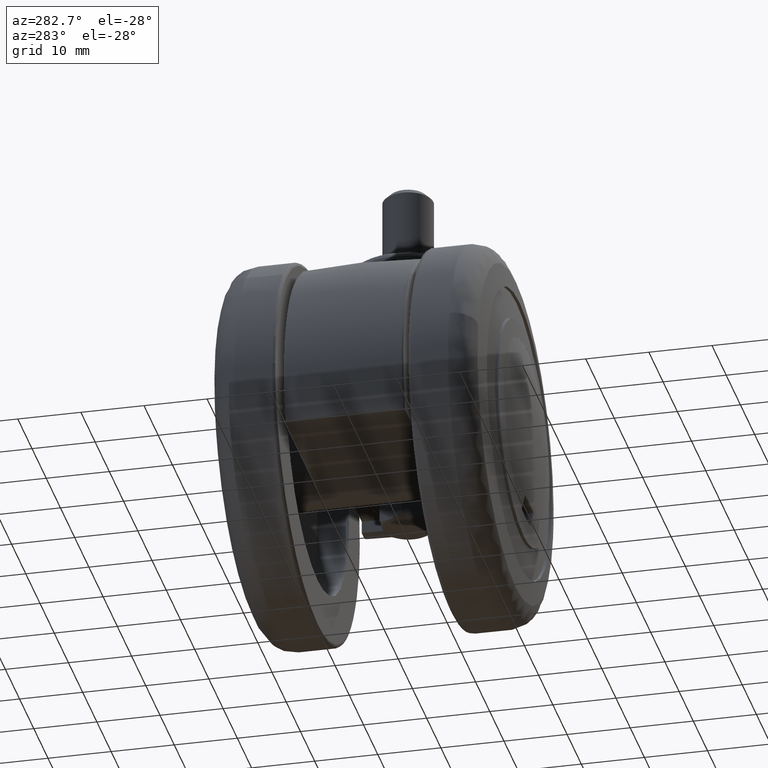
[diagram: clean part render]
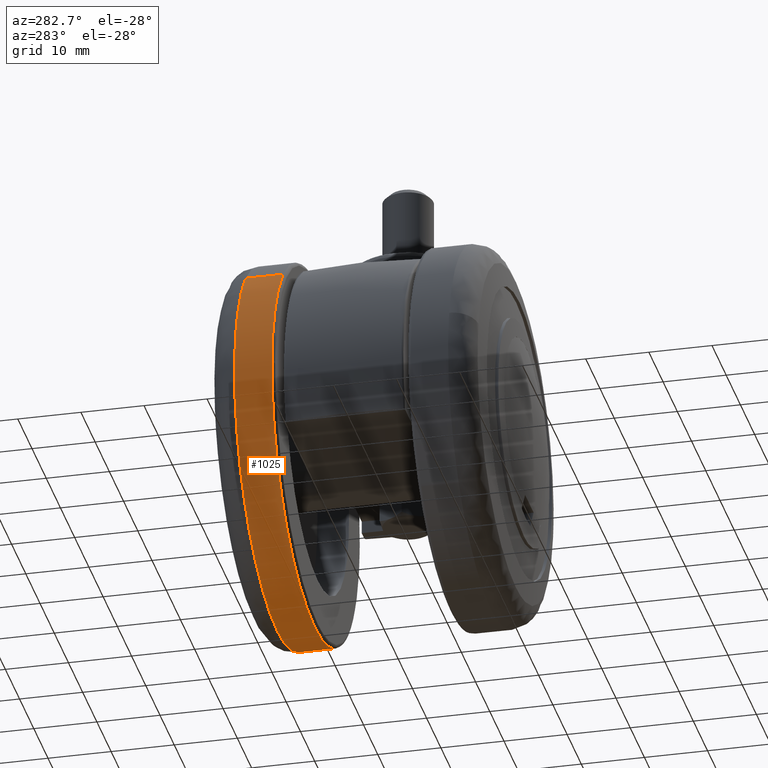
[diagram: same view with one face highlighted and labeled with its STEP entity id]
A machine part, auxiliary view. The second image highlights one B-rep face of the part: STEP entity #1025.
In plain terms, the highlighted face is a freeform B-spline surface patch.
Its self-contained STEP definition (entity closure, byte-faithful):
#804=CARTESIAN_POINT('',(19.630187965152860,16.918165000004919,-22.686024782953091));
#805=VERTEX_POINT('',#804);
#836=CARTESIAN_POINT('',(-22.118321371718419,16.918165000004819,20.267704845329199));
#837=VERTEX_POINT('',#836);
#851=CARTESIAN_POINT('',(-22.118321259217169,10.999999999976550,20.267704968094289));
#852=VERTEX_POINT('',#851);
#853=CARTESIAN_POINT('',(-22.118321371718419,16.918165000004819,20.267704845329199));
#854=CARTESIAN_POINT('',(-22.118321259217169,10.999999999976550,20.267704968094289));
#855=QUASI_UNIFORM_CURVE('',1,(#853,#854),.UNSPECIFIED.,.F.,.U.);
#856=EDGE_CURVE('',#837,#852,#855,.T.);
#890=CARTESIAN_POINT('',(19.630187422599640,10.999999999982380,-22.686025252417171));
#891=VERTEX_POINT('',#890);
#905=CARTESIAN_POINT('',(19.630187965152860,16.918165000004919,-22.686024782953091));
#906=CARTESIAN_POINT('',(19.630187422599640,10.999999999982380,-22.686025252417171));
#907=QUASI_UNIFORM_CURVE('',1,(#905,#906),.UNSPECIFIED.,.F.,.U.);
#908=EDGE_CURVE('',#805,#891,#907,.T.);
#913=CARTESIAN_POINT('',(-22.118320104303731,17.066119125357350,20.267706228469780));
#914=CARTESIAN_POINT('',(-42.386026332773511,17.066119125357357,-1.850613875833958));
#915=CARTESIAN_POINT('',(-20.267706228469780,17.066119125357361,-22.118320104303731));
#916=CARTESIAN_POINT('',(-0.571525739353565,17.066119125357357,-40.166544295554615));
#917=CARTESIAN_POINT('',(19.630189710081165,17.066119125357368,-22.686023273068884));
#918=CARTESIAN_POINT('',(-22.118320104303731,10.848347021793840,20.267706228469770));
#919=CARTESIAN_POINT('',(-42.386026332773511,10.848347021793844,-1.850613875833961));
#920=CARTESIAN_POINT('',(-20.267706228469780,10.848347021793851,-22.118320104303741));
#921=CARTESIAN_POINT('',(-0.571525739353565,10.848347021793856,-40.166544295554615));
#922=CARTESIAN_POINT('',(19.630189710081165,10.848347021793849,-22.686023273068884));
#930=(BOUNDED_SURFACE()B_SPLINE_SURFACE(2,1,((#913,#918),(#914,#919),(#915,#920),(#916,#921),(#917,#922)),.UNSPECIFIED.,.F.,.F.,.U.)B_SPLINE_SURFACE_WITH_KNOTS((3,2,3),(2,2),(0.0,49.705627484771391,95.434804770761062),(0.0,6.217772103563516),.UNSPECIFIED.)GEOMETRIC_REPRESENTATION_ITEM()RATIONAL_B_SPLINE_SURFACE(((1.0,1.0),(0.707106781186548,0.707106781186548),(1.0,1.0),(0.730538238691624,0.730538238691624),(0.956886118190660,0.956886118190660)))REPRESENTATION_ITEM('')SURFACE());
#931=CARTESIAN_POINT('',(0.0,16.918165000004851,-29.999999999999989));
#932=VERTEX_POINT('',#931);
#933=CARTESIAN_POINT('',(19.630187965152864,16.918165000004919,-22.686024782953098));
#934=CARTESIAN_POINT('',(11.177644192756237,16.918165000004844,-29.999999999999993));
#935=CARTESIAN_POINT('',(0.0,16.918165000004851,-29.999999999999989));
#943=(BOUNDED_CURVE()B_SPLINE_CURVE(2,(#933,#934,#935),.UNSPECIFIED.,.F.,.U.)B_SPLINE_CURVE_WITH_KNOTS((3,3),(0.385882131569503,0.500000000000000),.UNSPECIFIED.)CURVE()GEOMETRIC_REPRESENTATION_ITEM()RATIONAL_B_SPLINE_CURVE((0.854663299253246,0.866302600765047,1.0))REPRESENTATION_ITEM(''));
#944=EDGE_CURVE('',#805,#932,#943,.T.);
#945=ORIENTED_EDGE('',*,*,#944,.F.);
#946=ORIENTED_EDGE('',*,*,#908,.T.);
#947=CARTESIAN_POINT('',(0.0,11.0,-30.0));
#948=VERTEX_POINT('',#947);
#949=CARTESIAN_POINT('',(19.630187422599640,10.999999999982377,-22.686025252417167));
#950=CARTESIAN_POINT('',(11.177643784216981,11.0,-30.0));
#951=CARTESIAN_POINT('',(0.0,11.0,-30.0));
#959=(BOUNDED_CURVE()B_SPLINE_CURVE(2,(#949,#950,#951),.UNSPECIFIED.,.F.,.U.)B_SPLINE_CURVE_WITH_KNOTS((3,3),(0.385882135182826,0.500000000000000),.UNSPECIFIED.)CURVE()GEOMETRIC_REPRESENTATION_ITEM()RATIONAL_B_SPLINE_CURVE((0.854663299990318,0.866302604998318,1.0))REPRESENTATION_ITEM(''));
#960=EDGE_CURVE('',#891,#948,#959,.T.);
#961=ORIENTED_EDGE('',*,*,#960,.T.);
#962=CARTESIAN_POINT('',(-29.990525678497679,10.999999999929541,0.753902863352735));
#963=VERTEX_POINT('',#962);
#964=CARTESIAN_POINT('',(0.0,11.0,-30.0));
#965=CARTESIAN_POINT('',(-29.999999999999993,11.0,-29.999999999999993));
#966=CARTESIAN_POINT('',(-30.0,11.0,4.041201E-015));
#967=CARTESIAN_POINT('',(-30.0,11.000000000000005,0.377010963754011));
#968=CARTESIAN_POINT('',(-29.990525678497679,10.999999999929535,0.753902863352735));
#976=(BOUNDED_CURVE()B_SPLINE_CURVE(2,(#964,#965,#966,#967,#968),.UNSPECIFIED.,.F.,.U.)B_SPLINE_CURVE_WITH_KNOTS((3,2,3),(0.500000000000000,0.750000000000000,0.754420108230806),.UNSPECIFIED.)CURVE()GEOMETRIC_REPRESENTATION_ITEM()RATIONAL_B_SPLINE_CURVE((1.0,0.707106781186547,1.0,0.994821521091101,0.989826157680189))REPRESENTATION_ITEM(''));
#977=EDGE_CURVE('',#948,#963,#976,.T.);
#978=ORIENTED_EDGE('',*,*,#977,.T.);
#979=CARTESIAN_POINT('',(-29.990525678497676,10.999999999929537,0.753902863352735));
#980=CARTESIAN_POINT('',(-29.708202960816497,10.999999999956596,11.984801597435592));
#981=CARTESIAN_POINT('',(-22.118321259217169,10.999999999976550,20.267704968094289));
#989=(BOUNDED_CURVE()B_SPLINE_CURVE(2,(#979,#980,#981),.UNSPECIFIED.,.F.,.U.)B_SPLINE_CURVE_WITH_KNOTS((3,3),(0.754420108230806,0.868415200481951),.UNSPECIFIED.)CURVE()GEOMETRIC_REPRESENTATION_ITEM()RATIONAL_B_SPLINE_CURVE((0.989826157680189,0.860995169134216,0.853959781899742))REPRESENTATION_ITEM(''));
#990=EDGE_CURVE('',#963,#852,#989,.T.);
#991=ORIENTED_EDGE('',*,*,#990,.T.);
#992=ORIENTED_EDGE('',*,*,#856,.F.);
#993=CARTESIAN_POINT('',(-29.600578326231581,16.918165000345059,-4.879114955873533));
#994=VERTEX_POINT('',#993);
#995=CARTESIAN_POINT('',(-29.600578326231574,16.918165000345066,-4.879114955873533));
#996=CARTESIAN_POINT('',(-29.999999999999996,16.918165000004851,-2.455906516138719));
#997=CARTESIAN_POINT('',(-30.0,16.918165000004851,6.215428E-015));
#998=CARTESIAN_POINT('',(-30.000000000000007,16.918165000004848,11.666360875732664));
#999=CARTESIAN_POINT('',(-22.118321371718459,16.918165000004848,20.267704845329252));
#1007=(BOUNDED_CURVE()B_SPLINE_CURVE(2,(#995,#996,#997,#998,#999),.UNSPECIFIED.,.F.,.U.)B_SPLINE_CURVE_WITH_KNOTS((3,2,3),(0.722006108799185,0.750000000000000,0.868415199643972),.UNSPECIFIED.)CURVE()GEOMETRIC_REPRESENTATION_ITEM()RATIONAL_B_SPLINE_CURVE((0.941751131923255,0.967203116396318,1.0,0.861267964079358,0.853959782003176))REPRESENTATION_ITEM(''));
#1008=EDGE_CURVE('',#994,#837,#1007,.T.);
#1009=ORIENTED_EDGE('',*,*,#1008,.F.);
#1010=CARTESIAN_POINT('',(0.0,16.918165000004851,-29.999999999999989));
#1011=CARTESIAN_POINT('',(-25.459859027661022,16.918165000004848,-29.999999999999993));
#1012=CARTESIAN_POINT('',(-29.600578326231581,16.918165000345066,-4.879114955873533));
#1020=(BOUNDED_CURVE()B_SPLINE_CURVE(2,(#1010,#1011,#1012),.UNSPECIFIED.,.F.,.U.)B_SPLINE_CURVE_WITH_KNOTS((3,3),(0.500000000000000,0.722006108799184),.UNSPECIFIED.)CURVE()GEOMETRIC_REPRESENTATION_ITEM()RATIONAL_B_SPLINE_CURVE((1.0,0.739903664790230,0.941751131923254))REPRESENTATION_ITEM(''));
#1021=EDGE_CURVE('',#932,#994,#1020,.T.);
#1022=ORIENTED_EDGE('',*,*,#1021,.F.);
#1023=EDGE_LOOP('',(#945,#946,#961,#978,#991,#992,#1009,#1022));
#1024=FACE_OUTER_BOUND('',#1023,.T.);
#1025=ADVANCED_FACE('',(#1024),#930,.T.);